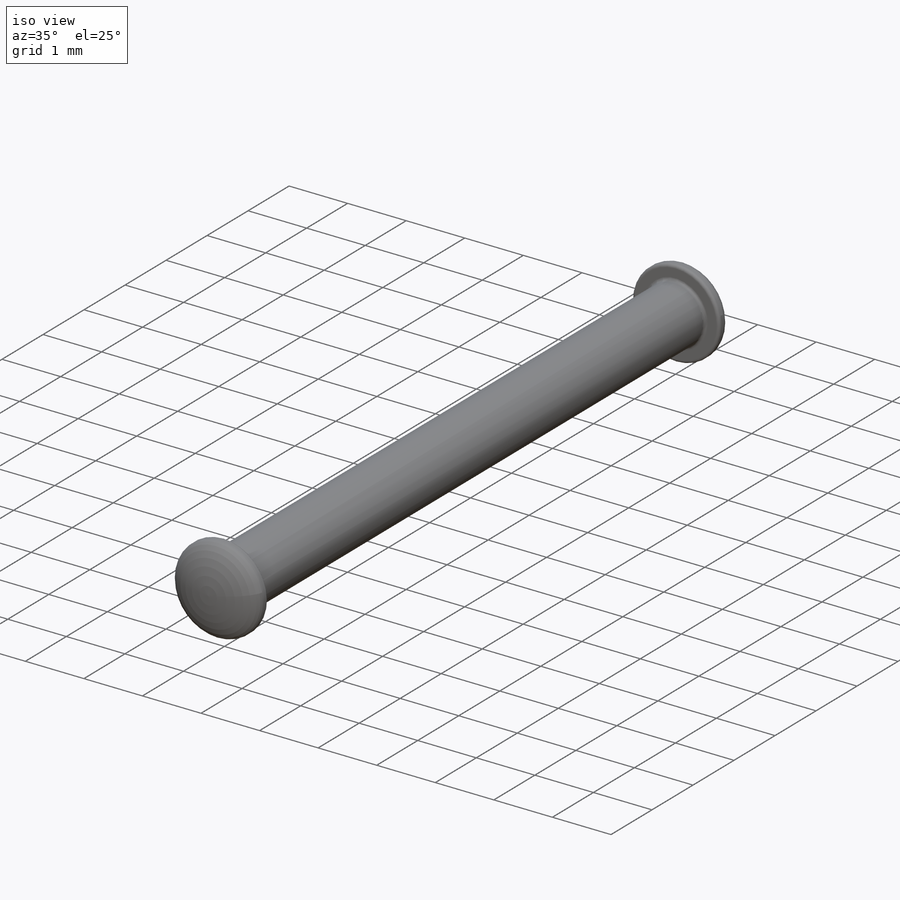
[diagram: iso view]
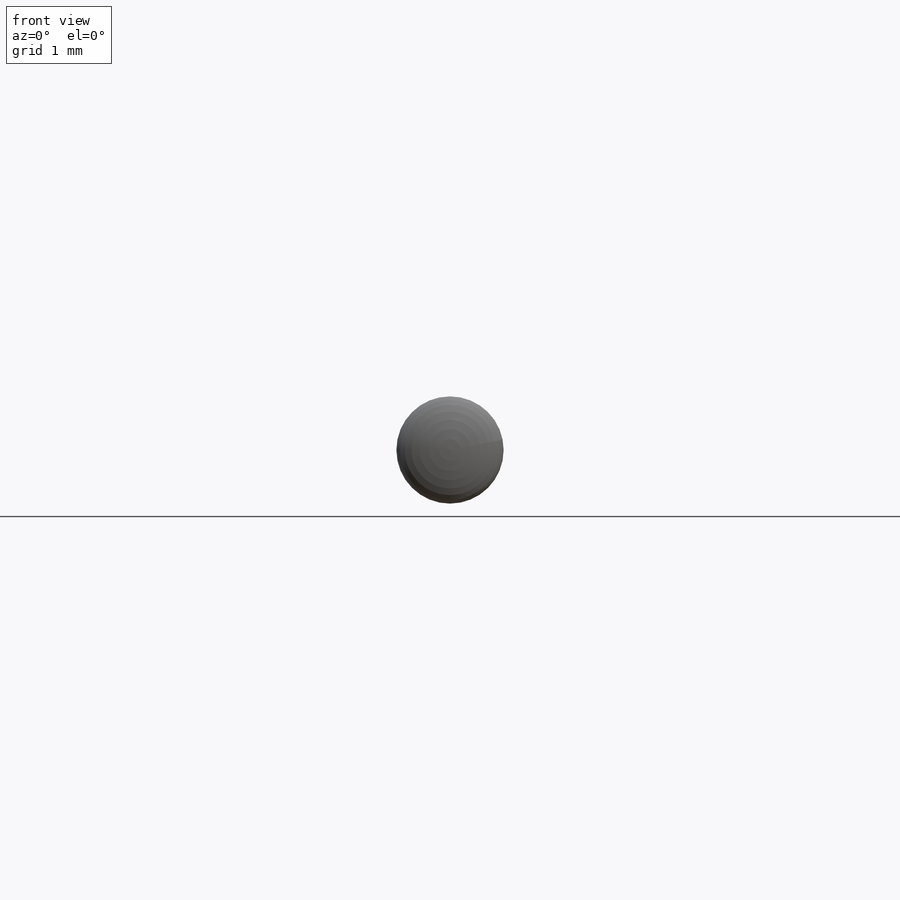
[diagram: front view]
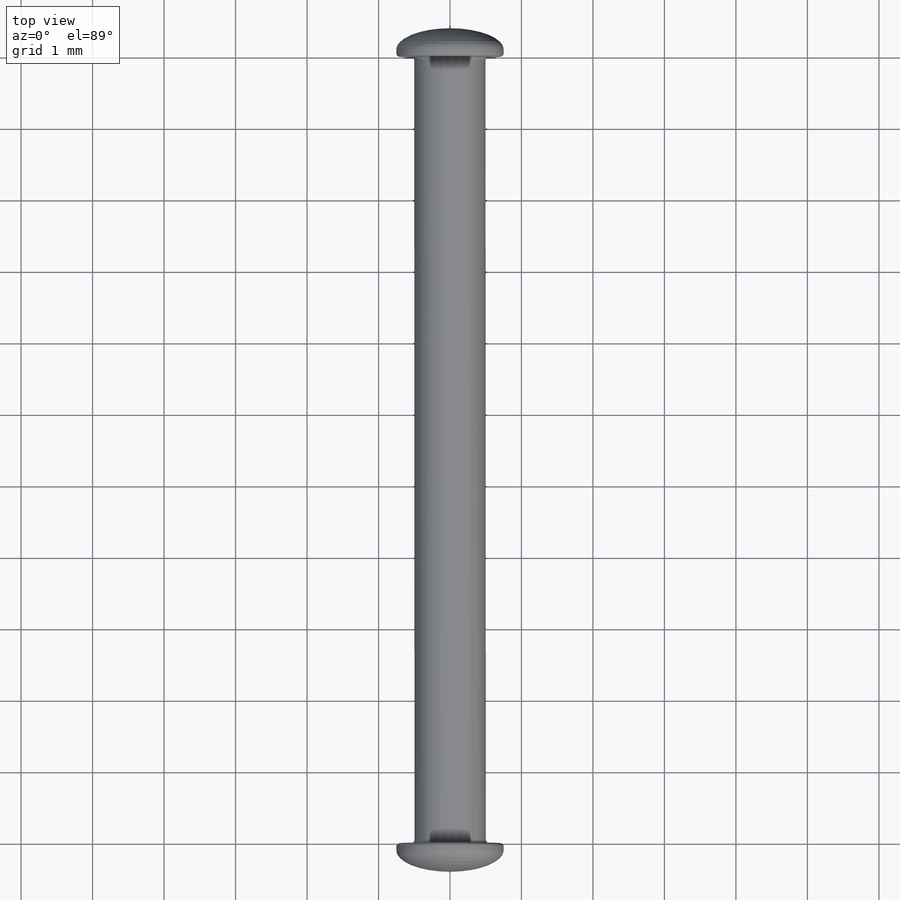
[diagram: top view]
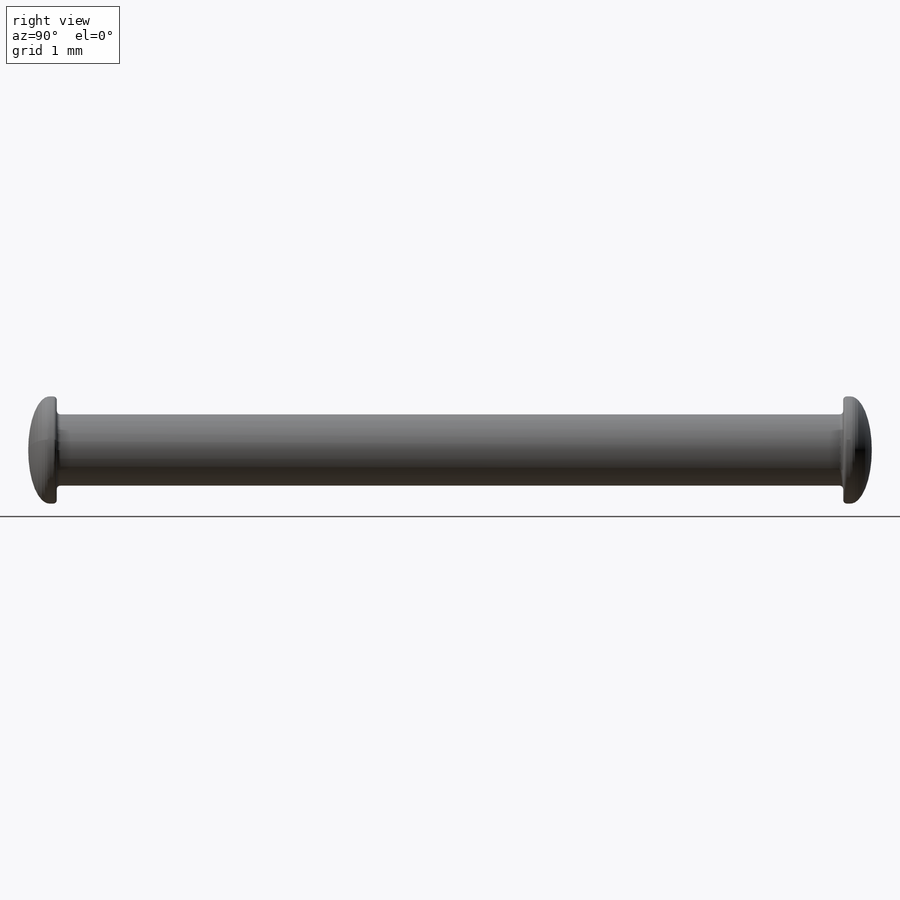
[diagram: right view]
SOLIDWORKS PART (.sldprt)
format: sldprt  version: not decoded by parser v0  size: 226,816 bytes
history: native  units: mm
features: sketch x3, extrude x3, dome x2, material x1, fillet x1 (+11 scaffold rows collapsed)
feature tree (21):
  scaffold x11  (default folders/planes/origin — collapsed)
  material  "Material <not specified>"
  sketch  "Sketch1"  dims[D1=1.0mm]
  extrude  "Boss-Extrude1"  Depth=11mm
  sketch  "Sketch2"  dims[D1=1.5mm]
  extrude  "Boss-Extrude2"  Depth=0.1mm
  sketch  "Sketch3"  dims[D1=1.5mm]
  extrude  "Boss-Extrude3"  Depth=0.1mm
  dome  "Dome1"
  dome  "Dome2"
  fillet  "Fillet2"  Radius=0.05mm
decode coverage: 7 of 9 modeling features carry decoded parameters
note: suppression state not decoded; provenance and decode notes live in map.json
